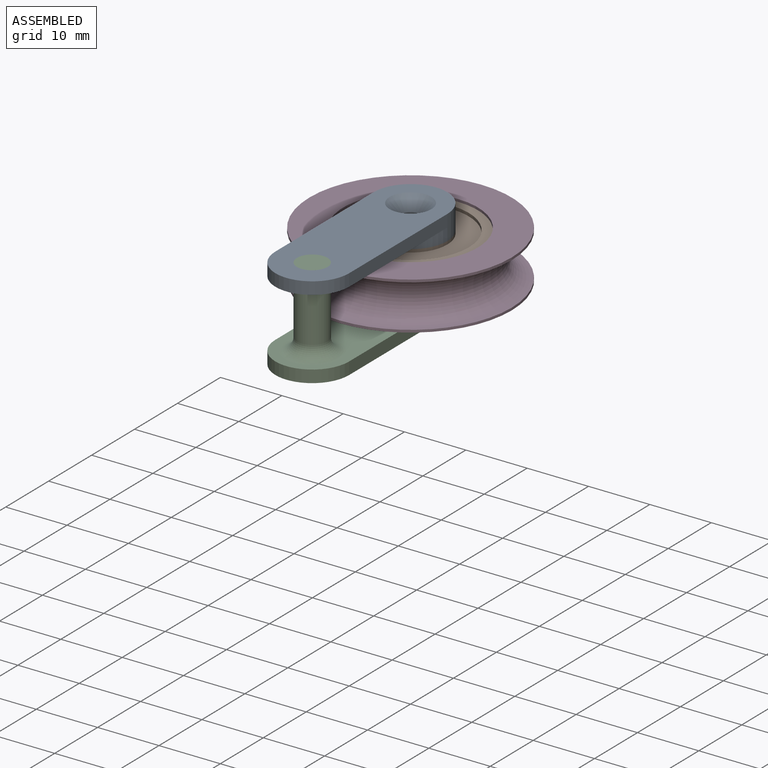
[diagram: assembled view]
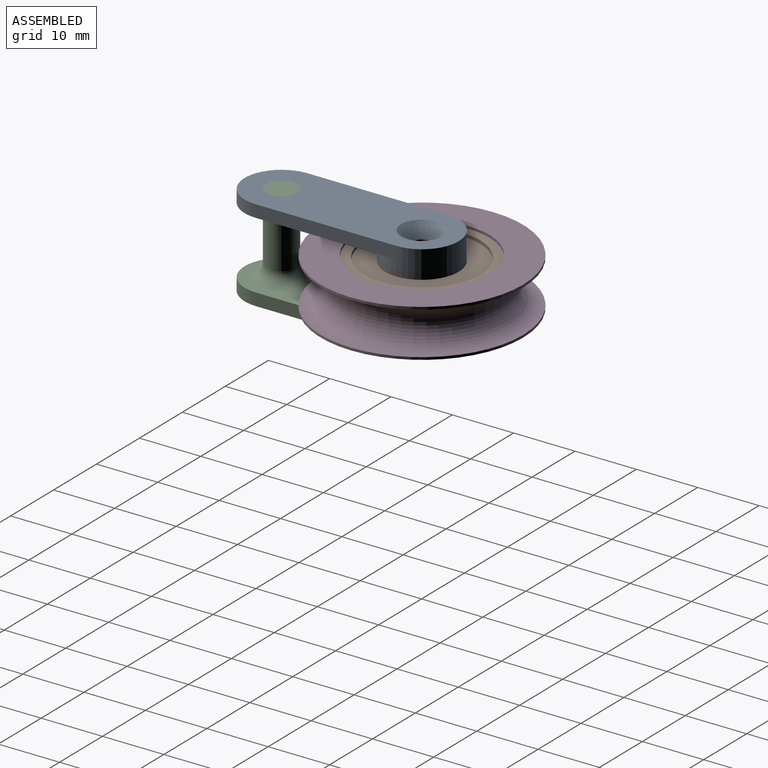
[diagram: assembled view, second angle]
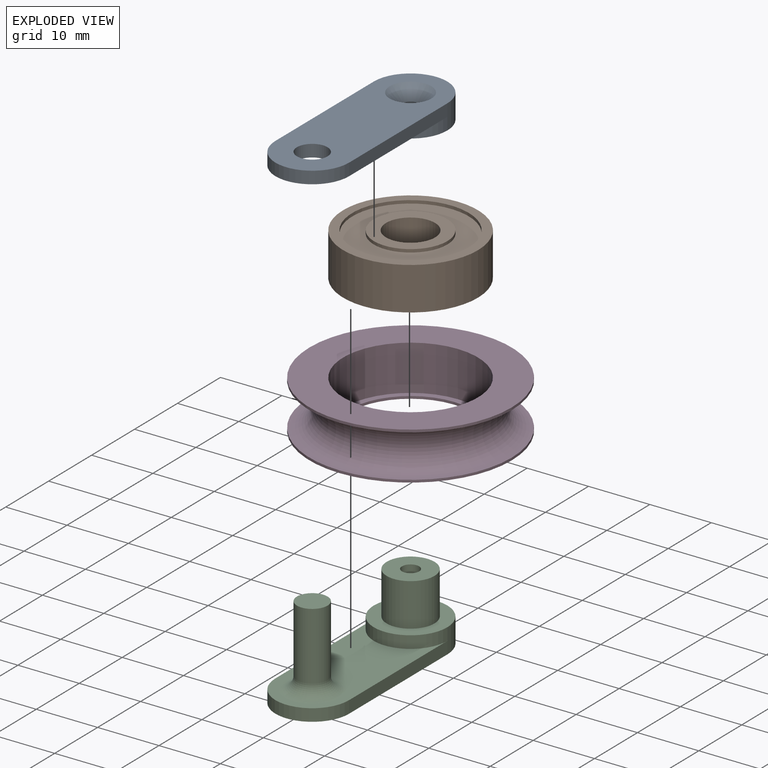
[diagram: exploded view]
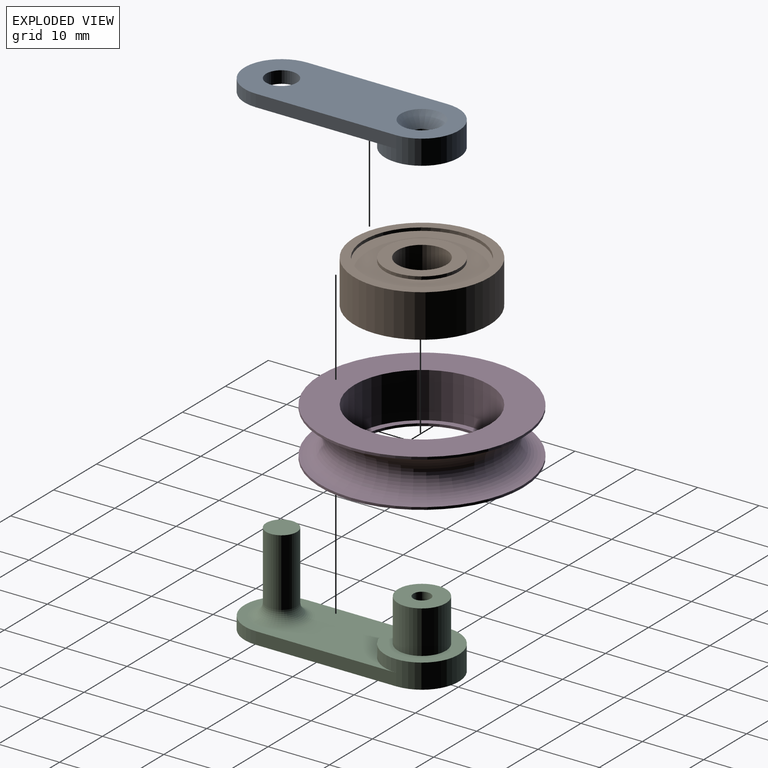
[diagram: exploded view, second angle]
ASSEMBLY  parts=4 mates=3
PART A: 10 faces, bbox 12x34.9x4 mm
  f0: cylinder r=6mm len=12mm, axis (0,0,-1), area 113.1mm2, adj f2,f3,f4,f6,f8
  f1: cylinder r=1.4mm len=2.8mm, axis (0,0,-1), area 17.6mm2, adj f2,f9
  f2: plane 12x12mm, normal (0,0,-1), area 106.9mm2, adj f0,f1
  f3: plane 28.89x12mm, normal (0,0,-1), area 255.1mm2, adj f0,f4,f5,f6,f7
  f4: plane 22.89x2mm, normal (-1,0,0), area 45.8mm2, adj f0,f3,f5,f8
  f5: cylinder r=6mm len=12mm, axis (0,0,-1), area 37.7mm2, adj f3,f4,f6,f8
  f6: plane 22.89x2mm, normal (1,0,0), area 45.8mm2, adj f0,f3,f5,f8
  f7: cylinder r=2.5mm len=5mm, axis (0,0,-1), area 31.4mm2, adj f3,f8
  f8: plane 34.89x12mm, normal (0,0,1), area 331.9mm2, adj f0,f4,f5,f6,f7,f9
  f9: cone r=1.4mm half-angle=45deg, axis (0,0,1), area 42.7mm2, adj f1,f8
PART B: 12 faces, bbox 22x22x7 mm
  f0: plane 12x12mm, normal (0,0,-1), area 62.8mm2, adj f6,f9
  f1: plane 19x19mm, normal (0,0,1), area 170.4mm2, adj f3,f7
  f2: plane 22x22mm, normal (0,0,-1), area 96.6mm2, adj f4,f10
  f3: cylinder r=9.5mm len=19mm, axis (0,0,-1), area 29.8mm2, adj f1,f5
  f4: cylinder r=11mm len=22mm, axis (0,0,-1), area 483.8mm2, adj f2,f5
  f5: plane 22x22mm, normal (0,0,1), area 96.6mm2, adj f3,f4
  f6: cylinder r=4mm len=8mm, axis (0,0,-1), area 175.9mm2, adj f0,f8
  f7: cylinder r=6mm len=12mm, axis (0,0,-1), area 18.8mm2, adj f1,f8
  f8: plane 12x12mm, normal (0,0,1), area 62.8mm2, adj f6,f7
  f9: cylinder r=6mm len=12mm, axis (0,0,-1), area 18.8mm2, adj f0,f11
  f10: cylinder r=9.5mm len=19mm, axis (0,0,-1), area 29.8mm2, adj f2,f11
  f11: plane 19x19mm, normal (0,0,-1), area 170.4mm2, adj f9,f10
PART C: 14 faces, bbox 12.8x35.3x15 mm
  f0: cylinder r=3.9mm len=7.8mm, axis (0,0,-1), area 171.5mm2, adj f1,f3
  f1: plane 7.8x7.8mm, normal (0,0,1), area 41.6mm2, adj f0,f11
  f2: cylinder r=6mm len=12mm, axis (0,0,-1), area 113.1mm2, adj f3,f4,f5,f7,f8
  f3: plane 12x12mm, normal (0,0,1), area 65.3mm2, adj f0,f2
  f4: plane 28.89x12mm, normal (0,0,1), area 211.1mm2, adj f2,f5,f6,f7,f13
  f5: plane 22.89x2mm, normal (-1,0,0), area 45.8mm2, adj f2,f4,f6,f8
  f6: cylinder r=6mm len=12mm, axis (0,0,1), area 37.7mm2, adj f4,f5,f7,f8
  f7: plane 22.89x2mm, normal (1,0,0), area 45.8mm2, adj f2,f4,f6,f8
  f8: plane 34.89x12mm, normal (0,0,-1), area 387.8mm2, adj f2,f5,f6,f7
  f9: cylinder r=2.5mm len=11mm, axis (0,0,-1), area 172.8mm2, adj f10,f13
  f10: plane 5x5mm, normal (0,0,1), area 19.6mm2, adj f9
  f11: cylinder r=1.4mm len=6mm, axis (0,0,1), area 52.8mm2, adj f1,f12
  f12: plane 2.8x2.8mm, normal (0,0,1), area 6.2mm2, adj f11
  f13: torus R=4.5mm, axis (0,0,1), area 63.7mm2, adj f4,f9
PART D: 8 faces, bbox 41.1x7.8x41.1 mm
  f0: torus R=16.5mm, axis (0,1,0), area 986mm2, adj f3,f6
  f1: cylinder r=11mm len=22mm, axis (0,1,0), area 511.5mm2, adj f2,f7
  f2: plane 22x22mm, normal (0,1,0), area 66mm2, adj f1,f4
  f3: cylinder r=16.5mm len=33mm, axis (0,1,0), area 41.5mm2, adj f0,f5
  f4: cylinder r=10mm len=20mm, axis (0,1,0), area 25.1mm2, adj f2,f5
  f5: plane 33x33mm, normal (0,-1,0), area 541.1mm2, adj f3,f4
  f6: cylinder r=16.5mm len=33mm, axis (0,-1,0), area 41.5mm2, adj f0,f7
  f7: plane 33x33mm, normal (0,1,0), area 475.2mm2, adj f1,f6
PLACE A t=(20.11,14.15,27.08)mm
PLACE B rot(axis=(1,0,0),180deg) t=(20.11,14.15,36.08)mm
PLACE C t=(20.11,14.15,27.08)mm
PLACE D rot(axis=(1,0,0),90deg) t=(20.11,14.15,29.08)mm
MATE revolute B.f6 <-> C.f0  axis (0,0,1) through (20.11,14.15,29.08)mm
MATE revolute D.f0 <-> B.f4  axis (0,0,1) through (20.11,14.15,29.08)mm
MATE revolute C.f9 <-> A.f7  axis (0,0,-1) through (20.11,-8.74,40.08)mm
